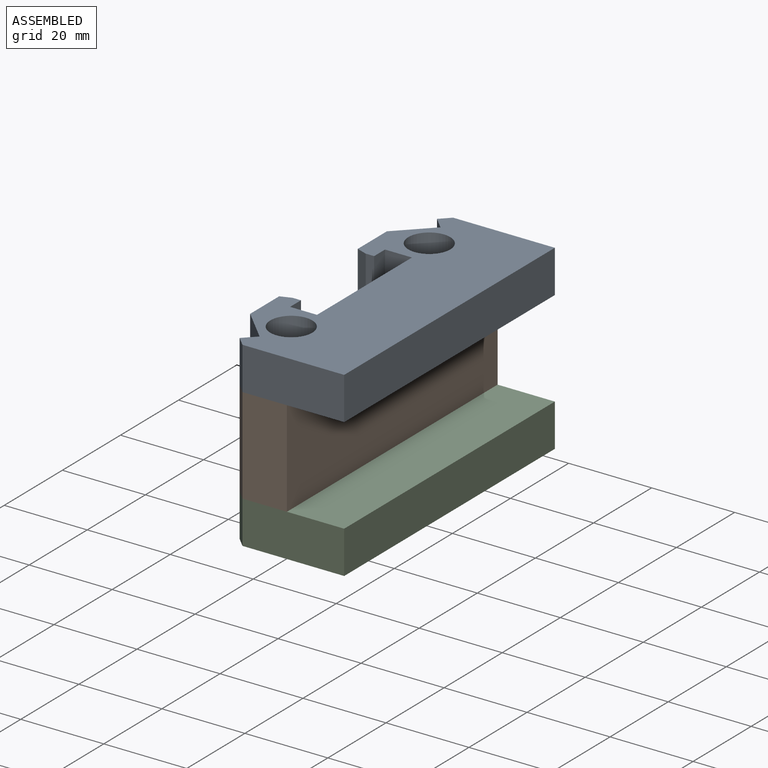
[diagram: assembled view]
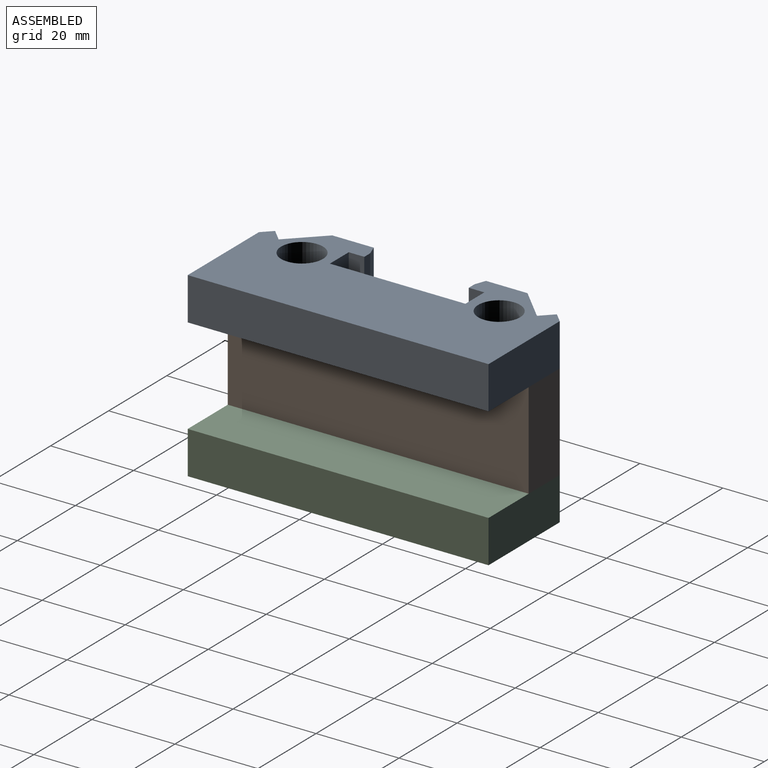
[diagram: assembled view, second angle]
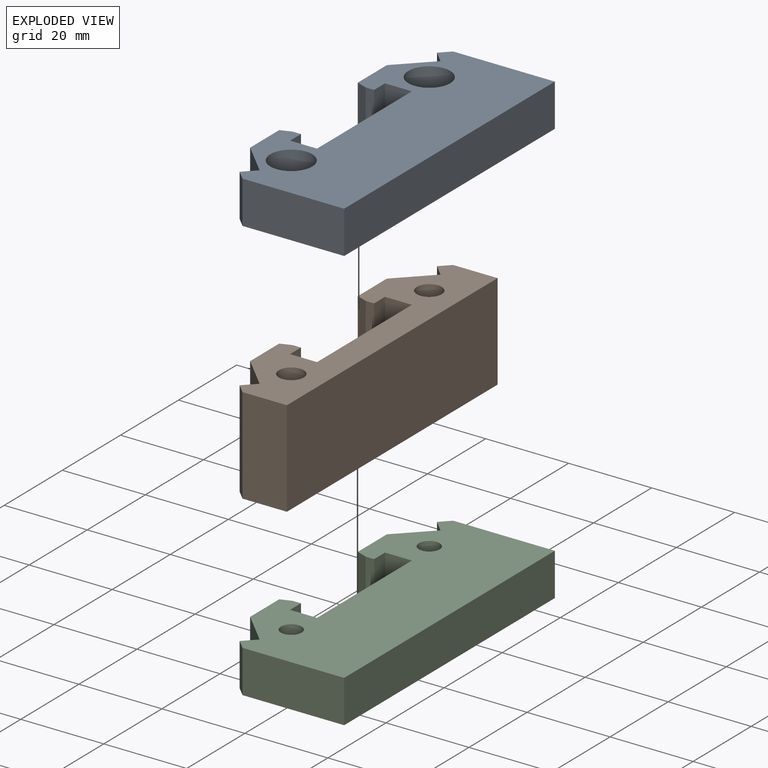
[diagram: exploded view]
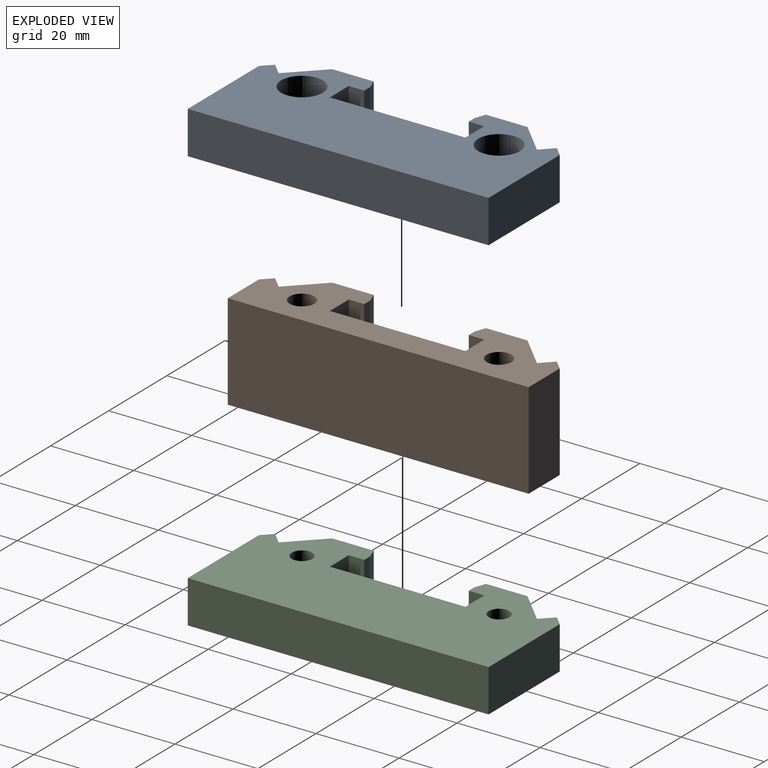
[diagram: exploded view, second angle]
ASSEMBLY  parts=3 mates=2
PART A: 28 faces, bbox 31.6x72.5x10.3 mm
  f0: cylinder r=3mm len=6mm, axis (0,0,-1), area 81.1mm2, adj f23,f27
  f1: cylinder r=3mm len=6mm, axis (0,0,-1), area 81.1mm2, adj f23,f25
  f2: plane 10.3x2.3mm, normal (-0.71,0.71,0), area 33.5mm2, adj f3,f21,f22,f23
  f3: plane 10.3x2.83mm, normal (-0.71,-0.71,0), area 41.2mm2, adj f2,f4,f22,f23
  f4: plane 10.3x7.6mm, normal (-0.71,0.71,0), area 110.7mm2, adj f3,f5,f22,f23
  f5: plane 10.3x10mm, normal (-1,0,0), area 103mm2, adj f4,f6,f22,f23
  f6: plane 10.3x2.59mm, normal (-0.34,-0.94,0), area 28.3mm2, adj f5,f7,f22,f23
  f7: plane 10.3x2mm, normal (0,-1,0), area 20.6mm2, adj f6,f8,f22,f23
  f8: plane 10.3x3.75mm, normal (1,0,0), area 38.6mm2, adj f7,f9,f22,f23
  f9: plane 10.3x6.5mm, normal (0,-1,0), area 67mm2, adj f8,f10,f22,f23
  f10: plane 32.68x10.3mm, normal (-1,0,0), area 336.6mm2, adj f9,f11,f22,f23
  f11: plane 10.3x6.5mm, normal (0,1,0), area 67mm2, adj f10,f12,f22,f23
  f12: plane 10.3x3.75mm, normal (1,0,0), area 38.6mm2, adj f11,f13,f22,f23
  f13: plane 10.3x2mm, normal (0,1,0), area 20.6mm2, adj f12,f14,f22,f23
  f14: plane 10.3x2.59mm, normal (-0.34,0.94,0), area 28.3mm2, adj f13,f15,f22,f23
  f15: plane 10.3x10mm, normal (-1,0,0), area 103mm2, adj f14,f16,f22,f23
  f16: plane 10.3x7.6mm, normal (-0.71,-0.71,0), area 110.7mm2, adj f15,f17,f22,f23
  f17: plane 10.3x2.83mm, normal (-0.71,0.71,0), area 41.2mm2, adj f16,f18,f22,f23
  f18: plane 10.3x2.3mm, normal (-0.71,-0.71,0), area 33.5mm2, adj f17,f19,f22,f23
  f19: plane 24.5x10.3mm, normal (0,-1,0), area 252.4mm2, adj f18,f20,f22,f23
  f20: plane 72.5x10.3mm, normal (1,0,0), area 746.8mm2, adj f19,f21,f22,f23
  f21: plane 24.5x10.3mm, normal (0,1,0), area 252.4mm2, adj f2,f20,f22,f23
  f22: plane 72.5x31.57mm, normal (0,0,1), area 1678.4mm2, adj f2,f3,f4,f5,f6,f7,f8,f9
  f23: plane 72.5x31.57mm, normal (0,0,-1), area 1782.1mm2, adj f0,f1,f2,f3,f4,f5,f6,f7
  f24: cylinder r=5.05mm len=10.1mm, axis (0,0,1), area 190.4mm2, adj f22,f25
  f25: plane 10.1x10.1mm, normal (0,0,1), area 51.8mm2, adj f1,f24
  f26: cylinder r=5.05mm len=10.1mm, axis (0,0,1), area 190.4mm2, adj f22,f27
  f27: plane 10.1x10.1mm, normal (0,0,1), area 51.8mm2, adj f0,f26
PART B: 24 faces, bbox 17.8x72.5x23.2 mm
  f0: plane 23.2x7.6mm, normal (-0.71,0.71,0), area 249.4mm2, adj f1,f21,f22,f23
  f1: plane 23.2x10mm, normal (-1,0,0), area 232mm2, adj f0,f2,f22,f23
  f2: plane 23.2x2.59mm, normal (-0.34,-0.94,0), area 63.8mm2, adj f1,f3,f22,f23
  f3: plane 23.2x2mm, normal (0,-1,0), area 46.4mm2, adj f2,f4,f22,f23
  f4: plane 23.2x3.75mm, normal (1,0,0), area 87mm2, adj f3,f5,f22,f23
  f5: plane 23.2x6.5mm, normal (0,-1,0), area 150.8mm2, adj f4,f6,f22,f23
  f6: plane 32.68x23.2mm, normal (-1,0,0), area 758.1mm2, adj f5,f7,f22,f23
  f7: plane 23.2x6.5mm, normal (0,1,0), area 150.8mm2, adj f6,f8,f22,f23
  f8: plane 23.2x3.75mm, normal (1,0,0), area 87mm2, adj f7,f9,f22,f23
  f9: plane 23.2x2mm, normal (0,1,0), area 46.4mm2, adj f8,f10,f22,f23
  f10: plane 23.2x2.59mm, normal (-0.34,0.94,0), area 63.8mm2, adj f9,f11,f22,f23
  f11: plane 23.2x10mm, normal (-1,0,0), area 232mm2, adj f10,f12,f22,f23
  f12: plane 23.2x7.6mm, normal (-0.71,-0.71,0), area 249.4mm2, adj f11,f13,f22,f23
  f13: plane 23.2x2.83mm, normal (-0.71,0.71,0), area 92.8mm2, adj f12,f14,f22,f23
  f14: plane 23.2x2.3mm, normal (-0.71,-0.71,0), area 75.4mm2, adj f13,f15,f22,f23
  f15: plane 23.2x10.7mm, normal (0,-1,0), area 248.2mm2, adj f14,f16,f22,f23
  f16: plane 72.5x23.2mm, normal (1,0,0), area 1682mm2, adj f15,f17,f22,f23
  f17: plane 23.2x10.7mm, normal (0,1,0), area 248.2mm2, adj f16,f18,f22,f23
  f18: plane 23.2x2.3mm, normal (-0.71,0.71,0), area 75.4mm2, adj f17,f21,f22,f23
  f19: cylinder r=3mm len=23.2mm, axis (0,0,-1), area 437.3mm2, adj f22,f23
  f20: cylinder r=3mm len=23.2mm, axis (0,0,-1), area 437.3mm2, adj f22,f23
  f21: plane 23.2x2.83mm, normal (-0.71,-0.71,0), area 92.8mm2, adj f0,f18,f22,f23
  f22: plane 72.5x17.77mm, normal (0,0,1), area 781.6mm2, adj f0,f1,f2,f3,f4,f5,f6,f7
  f23: plane 72.5x17.77mm, normal (0,0,-1), area 781.6mm2, adj f0,f1,f2,f3,f4,f5,f6,f7
PART C: 24 faces, bbox 31.6x72.5x10.3 mm
  f0: plane 10.3x2.3mm, normal (-0.71,0.71,0), area 33.5mm2, adj f1,f21,f22,f23
  f1: plane 10.3x2.83mm, normal (-0.71,-0.71,0), area 41.2mm2, adj f0,f2,f22,f23
  f2: plane 10.3x7.6mm, normal (-0.71,0.71,0), area 110.7mm2, adj f1,f3,f22,f23
  f3: plane 10.3x10mm, normal (-1,0,0), area 103mm2, adj f2,f4,f22,f23
  f4: plane 10.3x2.59mm, normal (-0.34,-0.94,0), area 28.3mm2, adj f3,f5,f22,f23
  f5: plane 10.3x2mm, normal (0,-1,0), area 20.6mm2, adj f4,f6,f22,f23
  f6: plane 10.3x3.75mm, normal (1,0,0), area 38.6mm2, adj f5,f7,f22,f23
  f7: plane 10.3x6.5mm, normal (0,-1,0), area 66.9mm2, adj f6,f8,f22,f23
  f8: plane 32.68x10.3mm, normal (-1,0,0), area 336.6mm2, adj f7,f9,f22,f23
  f9: plane 10.3x6.5mm, normal (0,1,0), area 66.9mm2, adj f8,f10,f22,f23
  f10: plane 10.3x3.75mm, normal (1,0,0), area 38.6mm2, adj f9,f11,f22,f23
  f11: plane 10.3x2mm, normal (0,1,0), area 20.6mm2, adj f10,f12,f22,f23
  f12: plane 10.3x2.59mm, normal (-0.34,0.94,0), area 28.3mm2, adj f11,f13,f22,f23
  f13: plane 10.3x10mm, normal (-1,0,0), area 103mm2, adj f12,f14,f22,f23
  f14: plane 10.3x7.6mm, normal (-0.71,-0.71,0), area 110.7mm2, adj f13,f15,f22,f23
  f15: plane 10.3x2.83mm, normal (-0.71,0.71,0), area 41.2mm2, adj f14,f16,f22,f23
  f16: plane 10.3x2.3mm, normal (-0.71,-0.71,0), area 33.5mm2, adj f15,f17,f22,f23
  f17: plane 24.5x10.3mm, normal (0,-1,0), area 252.4mm2, adj f16,f18,f22,f23
  f18: plane 72.5x10.3mm, normal (1,0,0), area 746.7mm2, adj f17,f21,f22,f23
  f19: cylinder r=2.5mm len=10.3mm, axis (0,0,-1), area 161.8mm2, adj f22,f23
  f20: cylinder r=2.5mm len=10.3mm, axis (0,0,-1), area 161.8mm2, adj f22,f23
  f21: plane 24.5x10.3mm, normal (0,1,0), area 252.4mm2, adj f0,f18,f22,f23
  f22: plane 72.5x31.57mm, normal (0,0,1), area 1799.3mm2, adj f0,f1,f2,f3,f4,f5,f6,f7
  f23: plane 72.5x31.57mm, normal (0,0,-1), area 1799.3mm2, adj f0,f1,f2,f3,f4,f5,f6,f7
PLACE A t=(80.17,-16.88,35.25)mm
PLACE B t=(134.94,72.7,18.5)mm
PLACE C t=(150.25,-31.33,1.75)mm
MATE fastened C.f20 <-> B.f20  axis (0,0,1) through (-5.94,-15.53,6.9)mm
MATE fastened A.f1 <-> B.f20  axis (0,0,-1) through (-5.94,-15.53,30.1)mm
